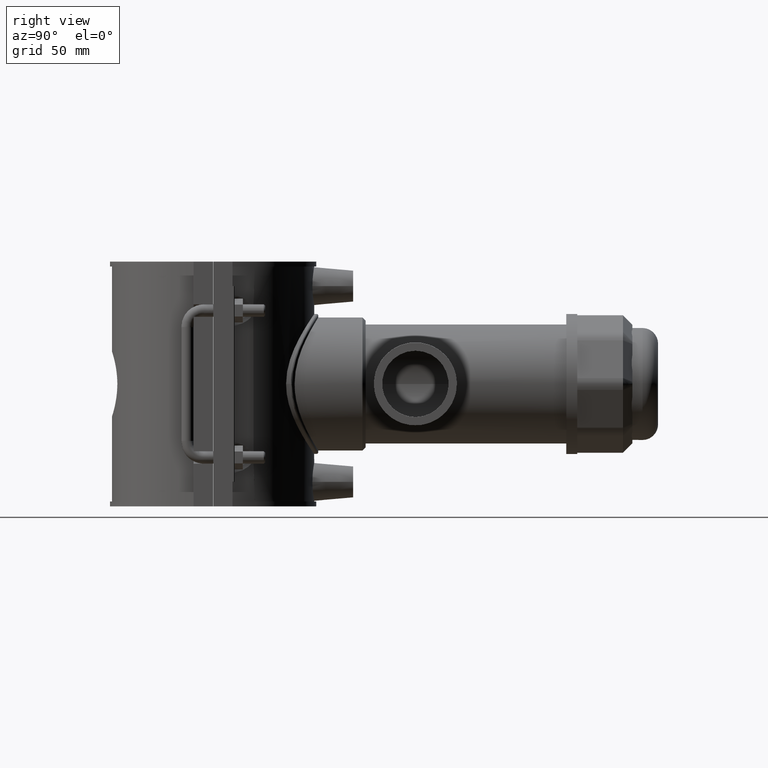
[diagram: clean part render]
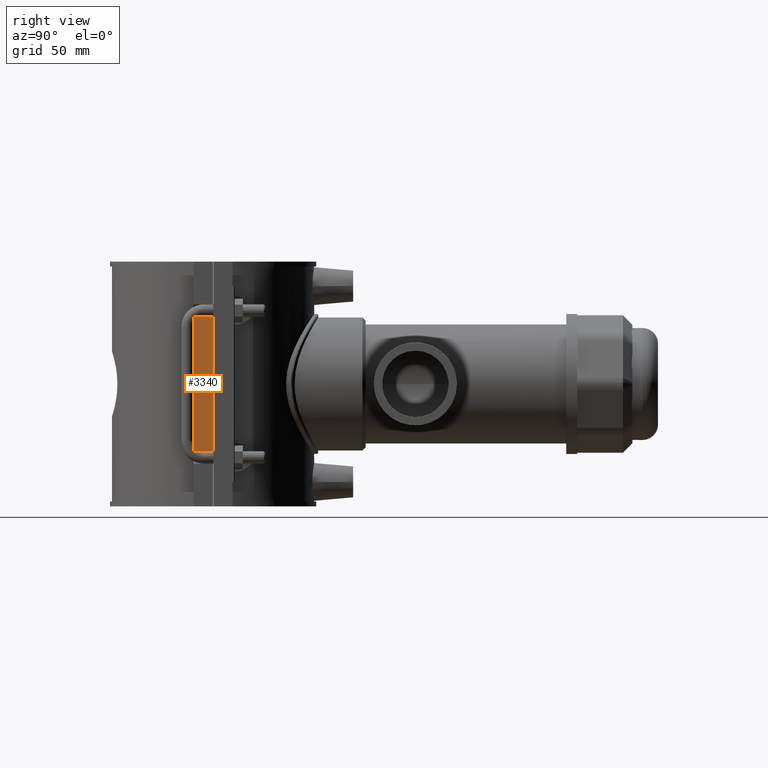
[diagram: same view with one face highlighted and labeled with its STEP entity id]
A machine part, right view. The second image highlights one B-rep face of the part: STEP entity #3340.
In plain terms, the highlighted planar face has unit normal (1, 0, 0).
Its self-contained STEP definition (entity closure, byte-faithful):
#298=LINE('',#6658,#585);
#307=LINE('',#6674,#594);
#309=LINE('',#6677,#596);
#317=LINE('',#6692,#604);
#585=VECTOR('',#4499,9.32499999999999);
#594=VECTOR('',#4514,9.32499999999999);
#596=VECTOR('',#4518,64.8);
#604=VECTOR('',#4532,64.8);
#960=FACE_OUTER_BOUND('',#1207,.T.);
#1207=EDGE_LOOP('',(#2977,#2978,#2979,#2980));
#1629=VERTEX_POINT('',#6655);
#1630=VERTEX_POINT('',#6657);
#1633=VERTEX_POINT('',#6671);
#1634=VERTEX_POINT('',#6673);
#2069=EDGE_CURVE('',#1630,#1629,#298,.T.);
#2078=EDGE_CURVE('',#1634,#1633,#307,.T.);
#2080=EDGE_CURVE('',#1633,#1630,#309,.T.);
#2088=EDGE_CURVE('',#1634,#1629,#317,.T.);
#2977=ORIENTED_EDGE('',*,*,#2069,.T.);
#2978=ORIENTED_EDGE('',*,*,#2088,.F.);
#2979=ORIENTED_EDGE('',*,*,#2078,.T.);
#2980=ORIENTED_EDGE('',*,*,#2080,.T.);
#3149=PLANE('',#3651);
#3340=ADVANCED_FACE('',(#960),#3149,.T.);
#3651=AXIS2_PLACEMENT_3D('',#6703,#4546,#4547);
#4499=DIRECTION('',(0.,-1.,0.));
#4514=DIRECTION('',(0.,1.,0.));
#4518=DIRECTION('',(0.,0.,1.));
#4532=DIRECTION('',(0.,0.,1.));
#4546=DIRECTION('center_axis',(1.,0.,0.));
#4547=DIRECTION('ref_axis',(0.,1.,0.));
#6655=CARTESIAN_POINT('',(58.5,-9.375,32.4));
#6657=CARTESIAN_POINT('',(58.5,-0.0500000000000078,32.4));
#6658=CARTESIAN_POINT('',(58.5,-9.375,32.4));
#6671=CARTESIAN_POINT('',(58.5,-0.0500000000000078,-32.4));
#6673=CARTESIAN_POINT('',(58.5,-9.375,-32.4));
#6674=CARTESIAN_POINT('',(58.5,-9.375,-32.4));
#6677=CARTESIAN_POINT('',(58.5,-0.0500000000000078,-29.5));
#6692=CARTESIAN_POINT('',(58.5,-9.375,0.));
#6703=CARTESIAN_POINT('Origin',(58.5,-9.375,0.));